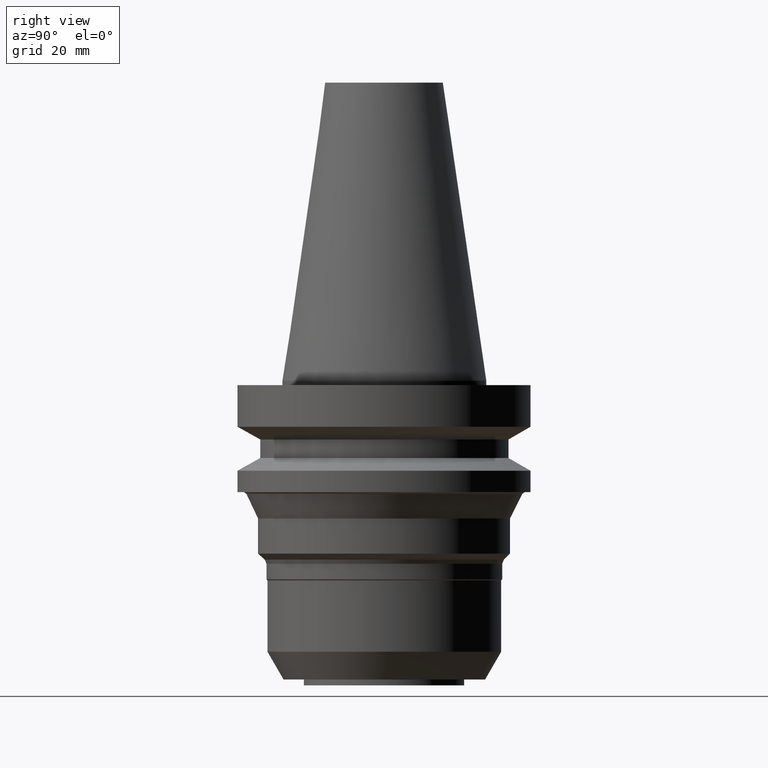
[diagram: clean part render]
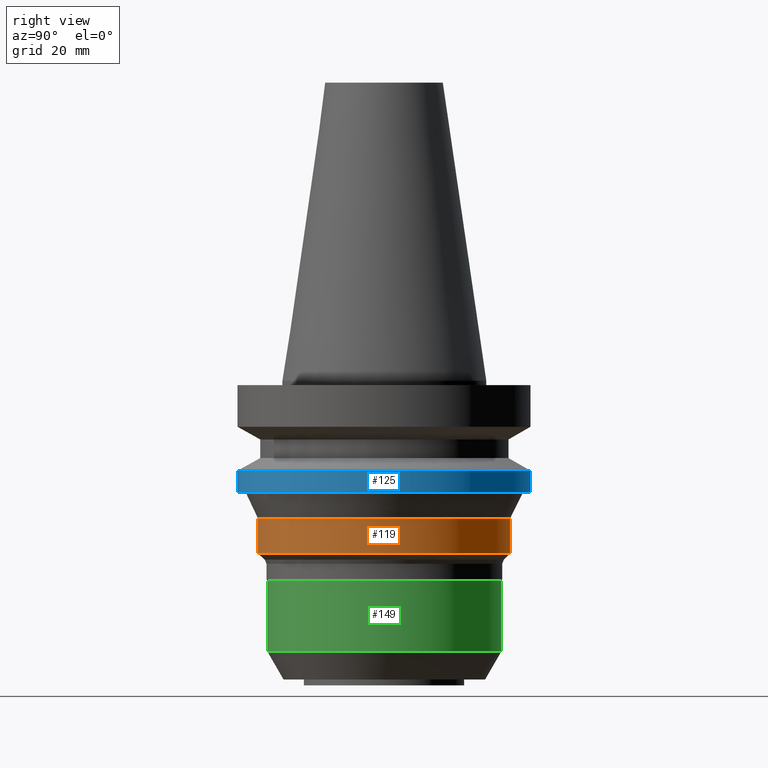
[diagram: same view with three faces highlighted in distinct colors, each labeled with its STEP entity id]
A machine part, right view with three faces highlighted in distinct colors.
Their STEP definitions:

[orange] entity #119 — the highlighted cylindrical surface (bore or boss wall) has radius 43 mm, axis along (0, 0, -1).
#111=EDGE_CURVE('Unnamed[1]',#260,#260,#261,.T.);
#113=EDGE_CURVE('Unnamed[1]',#263,#263,#264,.T.);
#119=ADVANCED_FACE('Unnamed[1]',(#272,#273),#274,.T.);
#260=VERTEX_POINT('',#457);
#261=CIRCLE('',#458,43.0000000000002);
#263=VERTEX_POINT('',#461);
#264=CIRCLE('',#462,43.0000000000001);
#272=FACE_BOUND('',#472,.T.);
#273=FACE_BOUND('',#473,.T.);
#274=CYLINDRICAL_SURFACE('',#474,43.0000000000001);
#457=CARTESIAN_POINT('',(3.61270805748471E-015,43.0000000000002,-59.0000000000003));
#458=AXIS2_PLACEMENT_3D('',#663,#664,#665);
#461=CARTESIAN_POINT('',(2.87791997799625E-015,43.0000000000001,-46.9999999999995));
#462=AXIS2_PLACEMENT_3D('',#666,#667,#668);
#472=EDGE_LOOP('',(#676));
#473=EDGE_LOOP('',(#677));
#474=AXIS2_PLACEMENT_3D('',#678,#679,#680);
#663=CARTESIAN_POINT('',(3.61270805748471E-015,7.22541611496941E-015,-59.0000000000003));
#664=DIRECTION('',(6.12323399573677E-017,1.22464679914755E-016,-1.0));
#665=DIRECTION('',(-1.23259516440783E-032,1.0,1.22464679914755E-016));
#666=CARTESIAN_POINT('',(2.87791997799625E-015,5.75583995599249E-015,-46.9999999999995));
#667=DIRECTION('',(6.12323399573677E-017,1.22464679914755E-016,-1.0));
#668=DIRECTION('',(-1.23259516440783E-032,1.0,1.22464679914755E-016));
#676=ORIENTED_EDGE('',*,*,#111,.F.);
#677=ORIENTED_EDGE('',*,*,#113,.T.);
#678=CARTESIAN_POINT('',(3.24531401774048E-015,6.49062803548096E-015,-52.9999999999999));
#679=DIRECTION('',(6.12323399573677E-017,1.22464679914755E-016,-1.0));
#680=DIRECTION('',(-1.23259516440783E-032,1.0,1.22464679914755E-016));

[blue] entity #125 — the highlighted cylindrical surface (bore or boss wall) has radius 50 mm, axis along (0, 0, -1).
#106=EDGE_CURVE('Unnamed[1]',#252,#252,#253,.T.);
#125=ADVANCED_FACE('Unnamed[1]',(#282,#283),#284,.T.);
#136=EDGE_CURVE('Unnamed[1]',#300,#300,#301,.T.);
#252=VERTEX_POINT('',#447);
#253=CIRCLE('',#448,50.0);
#282=FACE_BOUND('',#484,.T.);
#283=FACE_BOUND('',#485,.T.);
#284=CYLINDRICAL_SURFACE('',#486,50.0);
#300=VERTEX_POINT('',#507);
#301=CIRCLE('',#508,50.0);
#447=CARTESIAN_POINT('',(2.32682891837996E-015,50.0,-37.9999999999998));
#448=AXIS2_PLACEMENT_3D('',#654,#655,#656);
#484=EDGE_LOOP('',(#688));
#485=EDGE_LOOP('',(#689));
#486=AXIS2_PLACEMENT_3D('',#690,#691,#692);
#507=CARTESIAN_POINT('',(1.87983283669119E-015,50.0,-30.7000000000001));
#508=AXIS2_PLACEMENT_3D('',#708,#709,#710);
#654=CARTESIAN_POINT('',(2.32682891837996E-015,4.65365783675992E-015,-37.9999999999998));
#655=DIRECTION('',(6.12323399573677E-017,1.22464679914736E-016,-1.0));
#656=DIRECTION('',(-1.23259516440783E-032,1.0,1.22464679914736E-016));
#688=ORIENTED_EDGE('',*,*,#106,.F.);
#689=ORIENTED_EDGE('',*,*,#136,.T.);
#690=CARTESIAN_POINT('',(2.10333087753557E-015,4.20666175507115E-015,-34.3499999999999));
#691=DIRECTION('',(6.12323399573677E-017,1.22464679914736E-016,-1.0));
#692=DIRECTION('',(-1.23259516440783E-032,1.0,1.22464679914736E-016));
#708=CARTESIAN_POINT('',(1.87983283669119E-015,3.75966567338238E-015,-30.7000000000001));
#709=DIRECTION('',(6.12323399573677E-017,1.22464679914736E-016,-1.0));
#710=DIRECTION('',(-1.23259516440783E-032,1.0,1.22464679914736E-016));

[green] entity #149 — the highlighted cylindrical surface (bore or boss wall) has radius 40 mm, axis along (0, 0, -1).
#149=ADVANCED_FACE('Unnamed[1]',(#320,#321),#322,.T.);
#156=EDGE_CURVE('Unnamed[1]',#332,#332,#333,.T.);
#160=EDGE_CURVE('Unnamed[1]',#338,#338,#339,.T.);
#320=FACE_BOUND('',#532,.T.);
#321=FACE_BOUND('',#533,.T.);
#322=CYLINDRICAL_SURFACE('',#534,40.0000000000001);
#332=VERTEX_POINT('',#547);
#333=CIRCLE('',#548,40.0000000000001);
#338=VERTEX_POINT('',#555);
#339=CIRCLE('',#556,40.0000000000001);
#532=EDGE_LOOP('',(#730));
#533=EDGE_LOOP('',(#731));
#534=AXIS2_PLACEMENT_3D('',#732,#733,#734);
#547=CARTESIAN_POINT('',(5.66399061244881E-015,40.0000000000001,-92.4999863861531));
#548=AXIS2_PLACEMENT_3D('',#744,#745,#746);
#555=CARTESIAN_POINT('',(4.17298396809464E-015,40.0000000000001,-68.1500000000005));
#556=AXIS2_PLACEMENT_3D('',#750,#751,#752);
#730=ORIENTED_EDGE('',*,*,#156,.F.);
#731=ORIENTED_EDGE('',*,*,#160,.T.);
#732=CARTESIAN_POINT('',(4.91848729027172E-015,9.83697458054344E-015,-80.3249931930768));
#733=DIRECTION('',(6.12323399573677E-017,1.2246467991472E-016,-1.0));
#734=DIRECTION('',(-1.23259516440783E-032,1.0,1.2246467991472E-016));
#744=CARTESIAN_POINT('',(5.66399061244881E-015,1.13279812248976E-014,-92.4999863861531));
#745=DIRECTION('',(6.12323399573677E-017,1.2246467991472E-016,-1.0));
#746=DIRECTION('',(-1.23259516440783E-032,1.0,1.2246467991472E-016));
#750=CARTESIAN_POINT('',(4.17298396809464E-015,8.34596793618927E-015,-68.1500000000005));
#751=DIRECTION('',(6.12323399573677E-017,1.2246467991472E-016,-1.0));
#752=DIRECTION('',(-1.23259516440783E-032,1.0,1.2246467991472E-016));